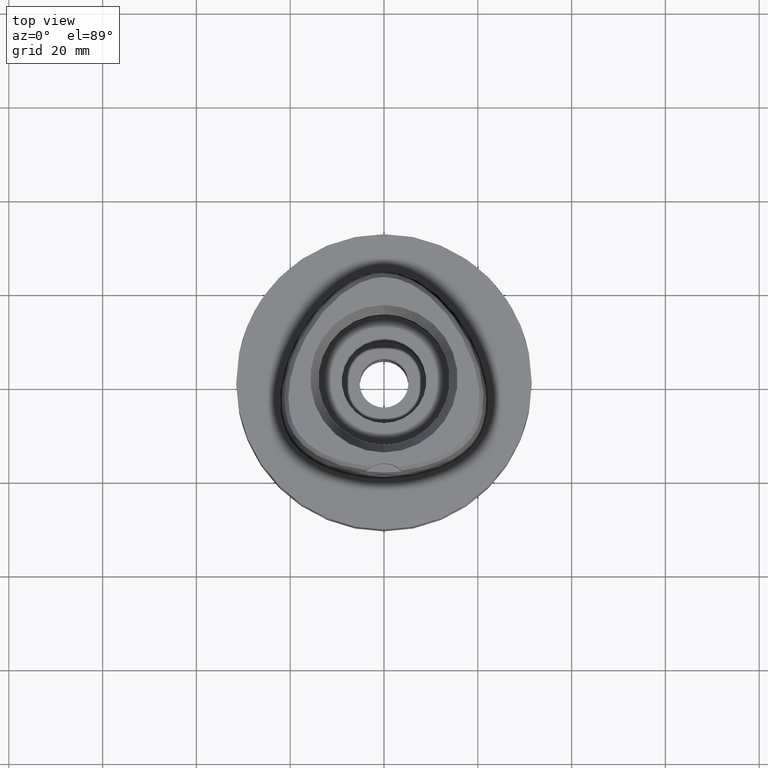
[diagram: clean part render]
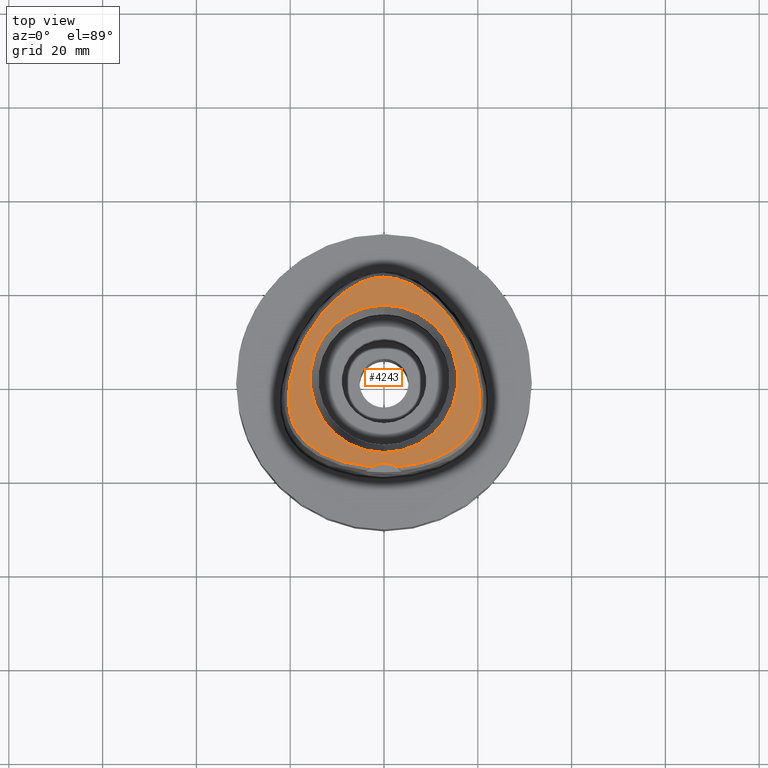
[diagram: same view with one face highlighted and labeled with its STEP entity id]
A machine part, top view. The second image highlights one B-rep face of the part: STEP entity #4243.
In plain terms, the highlighted planar face has unit normal (0, 0, 1).
Its self-contained STEP definition (entity closure, byte-faithful):
#8 = CARTESIAN_POINT ( 'NONE',  ( 10.17751632998190559, -17.24426134458915172, 37.99999999999217692 ) ) ;
#20 = VERTEX_POINT ( 'NONE', #3917 ) ;
#40 = CARTESIAN_POINT ( 'NONE',  ( -3.481017203589037656, 21.13509756881235546, 37.99999999999982947 ) ) ;
#53 = CARTESIAN_POINT ( 'NONE',  ( 15.00628712263565312, -14.82385870794811922, 37.99999999999611333 ) ) ;
#150 = AXIS2_PLACEMENT_3D ( 'NONE', #2559, #1288, #4353 ) ;
#198 = DIRECTION ( 'NONE',  ( 0.0000000000000000000, 0.0000000000000000000, 1.000000000000000000 ) ) ;
#238 = CARTESIAN_POINT ( 'NONE',  ( -19.98419490691548361, -7.809898894995556340, 37.99999999999954525 ) ) ;
#266 = CARTESIAN_POINT ( 'NONE',  ( -18.31748213707052386, -11.58791794387970953, 37.99999999999789679 ) ) ;
#288 = CARTESIAN_POINT ( 'NONE',  ( -19.78262210840454571, -8.543146992552236085, 38.00000000000492406 ) ) ;
#309 = CARTESIAN_POINT ( 'NONE',  ( -19.26324493738955468, 2.868570891456752481, 38.00000000000336087 ) ) ;
#332 = CARTESIAN_POINT ( 'NONE',  ( -12.44116897271013222, 14.89128547409494274, 38.00000000000293454 ) ) ;
#346 = CARTESIAN_POINT ( 'NONE',  ( 19.54993126781776880, -9.226212439886054995, 38.00000000000284928 ) ) ;
#373 = CARTESIAN_POINT ( 'NONE',  ( 19.94150023627803137, 0.2261566111946333446, 38.00000000000305533 ) ) ;
#385 = B_SPLINE_CURVE_WITH_KNOTS ( 'NONE', 3,
 ( #2146, #1045, #4827, #1067, #662, #2567, #3679, #683, #1386, #1844, #3706, #2916, #4108, #2194, #635, #1767, #2515, #1025, #266, #1361, #4905, #4853, #3405, #288, #238, #2238, #3382, #4454, #1792, #3749, #3310, #2540, #3335, #1818, #309, #4080, #1089, #1465, #3773, #3358, #4880, #2976, #2998, #332, #4508, #2592, #2895, #4532, #2618, #4157, #706, #4427, #991, #40, #4555, #2694, #4649, #1116, #3024, #4200 ),
 .UNSPECIFIED., .F., .F.,
 ( 4, 1, 1, 1, 1, 1, 1, 1, 1, 1, 1, 1, 1, 1, 1, 1, 1, 1, 1, 1, 1, 1, 1, 1, 1, 1, 1, 1, 1, 1, 1, 1, 1, 1, 1, 1, 1, 1, 1, 1, 1, 1, 1, 1, 1, 1, 1, 1, 1, 1, 1, 1, 1, 1, 1, 1, 1, 4 ),
 ( 0.0000000000000000000, 0.005420919554200098744, 0.02318126027639999531, 0.04094160099879995407, 0.05870194172099996166, 0.07646228244330000035, 0.09422262316550000794, 0.1119829638877999356, 0.1297433046099999432, 0.1475036453321999508, 0.1652639860544999895, 0.1830243267768000281, 0.2007846674991000668, 0.2185450082212999634, 0.2363053489436000021, 0.2540656896658000097, 0.2718260303881000484, 0.2895863711103000560, 0.3073467118325999836, 0.3251070525547999912, 0.3428673932771000299, 0.3606277339994000686, 0.3783880747216000762, 0.3961484154438998928, 0.4139087561661000114, 0.4316690968884000501, 0.4494294376106000577, 0.4671897783328999854, 0.4849501190552000240, 0.5027104597774000316, 0.5204708004996999593, 0.5382311412219000779, 0.5559914819442000056, 0.5737518226664000132, 0.5915121633886999408, 0.6092725041108999484, 0.6270328448331999871, 0.6447931855555000258, 0.6625535262777000334, 0.6803138669999999610, 0.6980742077221999686, 0.7158345484445000073, 0.7335948891667000149, 0.7513552298890000536, 0.7691155706112000612, 0.7868759113336000199, 0.8046362520558000275, 0.8223965927780999552, 0.8401569335002999628, 0.8579172742224999704, 0.8756776149448000091, 0.8934379556670000166, 0.9111982963893099363, 0.9289586371115700070, 0.9467189778338299666, 0.9644793185560800453, 0.9822396592783400049, 1.000000000000000000 ),
 .UNSPECIFIED. ) ;
#394 = CARTESIAN_POINT ( 'NONE',  ( 11.32341394163062809, -16.80569392800790141, 37.99999999999589306 ) ) ;
#417 = CARTESIAN_POINT ( 'NONE',  ( 12.44125753246842692, 14.89118158853494478, 37.99999999999783995 ) ) ;
#419 = EDGE_LOOP ( 'NONE', ( #2419, #3201 ) ) ;
#439 = CARTESIAN_POINT ( 'NONE',  ( 0.6513209347956022688, 21.67370899611317370, 37.99999999999768363 ) ) ;
#486 = VERTEX_POINT ( 'NONE', #726 ) ;
#635 = CARTESIAN_POINT ( 'NONE',  ( -16.36032397153822515, -13.76458520345111936, 38.00000000000185452 ) ) ;
#645 = CARTESIAN_POINT ( 'NONE',  ( 0.0000000000000000000, 15.71487483155999776, 38.00000000000000000 ) ) ;
#662 = CARTESIAN_POINT ( 'NONE',  ( -6.188376196366313309, -18.31830638230976405, 38.00000000000031974 ) ) ;
#683 = CARTESIAN_POINT ( 'NONE',  ( -10.17136073855085243, -17.24644253470297883, 38.00000000000436984 ) ) ;
#706 = CARTESIAN_POINT ( 'NONE',  ( -5.893543501600960965, 20.13235399351943755, 38.00000000000260769 ) ) ;
#717 = CARTESIAN_POINT ( 'NONE',  ( 9.524842839488611546, 17.70516372194568788, 38.00000000000068212 ) ) ;
#726 = CARTESIAN_POINT ( 'NONE',  ( 2.682287482605000051, -18.78036330228999873, 38.00000000000000000 ) ) ;
#743 = CARTESIAN_POINT ( 'NONE',  ( 19.98468477323133641, -7.807876343103603567, 37.99999999999399591 ) ) ;
#769 = CARTESIAN_POINT ( 'NONE',  ( 20.38292172607974706, -3.276278498261163463, 37.99999999999516120 ) ) ;
#795 = CARTESIAN_POINT ( 'NONE',  ( 18.79595068776392708, 4.257753965101878535, 37.99999999999681677 ) ) ;
#820 = CARTESIAN_POINT ( 'NONE',  ( 20.36412151361413692, -5.276385427454139965, 37.99999999999643308 ) ) ;
#921 = DIRECTION ( 'NONE',  ( 0.0000000000000000000, -1.000000000000000000, 0.0000000000000000000 ) ) ;
#991 = CARTESIAN_POINT ( 'NONE',  ( -4.254559144977576146, 20.86660163697397508, 37.99999999999848654 ) ) ;
#1025 = CARTESIAN_POINT ( 'NONE',  ( -17.91005512243684805, -12.13778127739548651, 37.99999999999809575 ) ) ;
#1045 = CARTESIAN_POINT ( 'NONE',  ( -2.841965291530292426, -18.76757795571573695, 37.99999999999754152 ) ) ;
#1052 = CARTESIAN_POINT ( 'NONE',  ( 0.0000000000000000000, 0.0000000000000000000, 38.00000000000000000 ) ) ;
#1067 = CARTESIAN_POINT ( 'NONE',  ( -4.706994425064735310, -18.56721852572744424, 38.00000000000441958 ) ) ;
#1089 = CARTESIAN_POINT ( 'NONE',  ( -18.24302769441974803, 5.671232572958252227, 38.00000000000181188 ) ) ;
#1096 = EDGE_LOOP ( 'NONE', ( #1505, #2415, #2271 ) ) ;
#1104 = CARTESIAN_POINT ( 'NONE',  ( 19.28677546797570486, -9.867757137506423248, 37.99999999999532463 ) ) ;
#1116 = CARTESIAN_POINT ( 'NONE',  ( -0.6498990081534651297, 21.67378274708412178, 37.99999999999906208 ) ) ;
#1129 = CARTESIAN_POINT ( 'NONE',  ( 19.64387775268659198, 1.522048414457828569, 37.99999999999570122 ) ) ;
#1150 = CARTESIAN_POINT ( 'NONE',  ( 2.018320379028573974, 21.50256508436651259, 37.99999999999770495 ) ) ;
#1174 = CARTESIAN_POINT ( 'NONE',  ( 3.482188079160372318, 21.13472718027603747, 37.99999999999329958 ) ) ;
#1195 = CARTESIAN_POINT ( 'NONE',  ( 4.715576077242463526, -18.56597918135471659, 37.99999999999371170 ) ) ;
#1288 = DIRECTION ( 'NONE',  ( 0.0000000000000000000, 0.0000000000000000000, 1.000000000000000000 ) ) ;
#1340 = FACE_OUTER_BOUND ( 'NONE', #1096, .T. ) ;
#1347 = CIRCLE ( 'NONE', #150, 15.71487483155999776 ) ;
#1361 = CARTESIAN_POINT ( 'NONE',  ( -18.67608643721816009, -11.03561202290891607, 37.99999999999732125 ) ) ;
#1366 = CARTESIAN_POINT ( 'NONE',  ( 0.0000000000000000000, 0.0000000000000000000, 38.00000000000000000 ) ) ;
#1386 = CARTESIAN_POINT ( 'NONE',  ( -11.31790883121293767, -16.80796958613732173, 37.99999999999862865 ) ) ;
#1393 = PLANE ( 'NONE',  #3176 ) ;
#1408 = CARTESIAN_POINT ( 'NONE',  ( 18.24247239569687196, 5.672548708072314483, 37.99999999999596412 ) ) ;
#1465 = CARTESIAN_POINT ( 'NONE',  ( -17.60426951086821745, 7.098774535281576092, 37.99999999999933209 ) ) ;
#1503 = CARTESIAN_POINT ( 'NONE',  ( 14.34383722811839590, 12.54786717290273401, 37.99999999999673150 ) ) ;
#1505 = ORIENTED_EDGE ( 'NONE', *, *, #3870, .F. ) ;
#1529 = CARTESIAN_POINT ( 'NONE',  ( 8.578848111817070077, 18.44609846599465897, 37.99999999999545253 ) ) ;
#1578 = CARTESIAN_POINT ( 'NONE',  ( 16.36283630828430802, -13.76236604535393049, 37.99999999999808153 ) ) ;
#1765 = VERTEX_POINT ( 'NONE', #3230 ) ;
#1767 = CARTESIAN_POINT ( 'NONE',  ( -16.93638123745085267, -13.22593246128543321, 37.99999999999938893 ) ) ;
#1774 = FACE_BOUND ( 'NONE', #419, .T. ) ;
#1792 = CARTESIAN_POINT ( 'NONE',  ( -20.40060226222328055, -4.311417605381407725, 38.00000000000665779 ) ) ;
#1818 = CARTESIAN_POINT ( 'NONE',  ( -19.64434054692757670, 1.520253387635341680, 37.99999999999442934 ) ) ;
#1828 = EDGE_CURVE ( 'NONE', #4298, #20, #1347, .T. ) ;
#1838 = AXIS2_PLACEMENT_3D ( 'NONE', #1366, #198, #921 ) ;
#1844 = CARTESIAN_POINT ( 'NONE',  ( -12.37132652997411775, -16.34104299088199497, 37.99999999999779732 ) ) ;
#1876 = CARTESIAN_POINT ( 'NONE',  ( 8.936919536467140546, -17.64796721715157446, 37.99999999999498357 ) ) ;
#1904 = CARTESIAN_POINT ( 'NONE',  ( 6.196495988003688282, -18.31673538865006634, 37.99999999999585043 ) ) ;
#1925 = CARTESIAN_POINT ( 'NONE',  ( 2.682287482605000051, -18.78036330228999873, 38.00000000000000000 ) ) ;
#1946 = CARTESIAN_POINT ( 'NONE',  ( 20.27923816685590097, -6.179850483268190864, 38.00000000000218137 ) ) ;
#1974 = CARTESIAN_POINT ( 'NONE',  ( 20.30478359881706396, -2.175347700950502450, 37.99999999999626255 ) ) ;
#2146 = CARTESIAN_POINT ( 'NONE',  ( -2.682279906006999948, -18.78035848609999903, 38.00000000000000000 ) ) ;
#2147 = EDGE_CURVE ( 'NONE', #20, #4298, #4721, .T. ) ;
#2194 = CARTESIAN_POINT ( 'NONE',  ( -15.71788912669162208, -14.29843101566231667, 37.99999999999629097 ) ) ;
#2238 = CARTESIAN_POINT ( 'NONE',  ( -20.15090095365025391, -7.024227649787309957, 38.00000000000500933 ) ) ;
#2250 = CARTESIAN_POINT ( 'NONE',  ( 16.88599964843074019, 8.518708218769932117, 37.99999999999635492 ) ) ;
#2271 = ORIENTED_EDGE ( 'NONE', *, *, #4480, .F. ) ;
#2275 = CARTESIAN_POINT ( 'NONE',  ( 13.40430406168976951, 13.76274261013416123, 38.00000000000384404 ) ) ;
#2305 = CARTESIAN_POINT ( 'NONE',  ( 18.31883910943184901, -11.58595831188243608, 37.99999999999543832 ) ) ;
#2330 = CARTESIAN_POINT ( 'NONE',  ( 19.26272899268355943, 2.870227893749634607, 37.99999999999469225 ) ) ;
#2352 = CARTESIAN_POINT ( 'NONE',  ( 12.37622418509859124, -16.33871033286321506, 37.99999999999780442 ) ) ;
#2373 = AXIS2_PLACEMENT_3D ( 'NONE', #3849, #2648, #3411 ) ;
#2415 = ORIENTED_EDGE ( 'NONE', *, *, #3290, .F. ) ;
#2419 = ORIENTED_EDGE ( 'NONE', *, *, #2147, .F. ) ;
#2486 = CARTESIAN_POINT ( 'NONE',  ( -2.682279906006999948, -18.78035848609999903, 38.00000000000000000 ) ) ;
#2498 = DIRECTION ( 'NONE',  ( 0.0000000000000000000, 0.0000000000000000000, 1.000000000000000000 ) ) ;
#2515 = CARTESIAN_POINT ( 'NONE',  ( -17.45119705494091988, -12.68365517585234770, 37.99999999999938893 ) ) ;
#2540 = CARTESIAN_POINT ( 'NONE',  ( -20.16012968311504139, -1.009698174524069403, 37.99999999999889155 ) ) ;
#2559 = CARTESIAN_POINT ( 'NONE',  ( 0.0000000000000000000, 0.0000000000000000000, 38.00000000000000000 ) ) ;
#2567 = CARTESIAN_POINT ( 'NONE',  ( -7.599370508970773486, -18.01010694911734333, 38.00000000000499512 ) ) ;
#2592 = CARTESIAN_POINT ( 'NONE',  ( -10.48962422759511526, 16.86631853279375548, 38.00000000000175504 ) ) ;
#2618 = CARTESIAN_POINT ( 'NONE',  ( -7.655222869371832495, 19.09452359226587248, 37.99999999999369749 ) ) ;
#2628 = CARTESIAN_POINT ( 'NONE',  ( 0.2185816947241297215, 21.68728795389934660, 38.00000000000162714 ) ) ;
#2648 = DIRECTION ( 'NONE',  ( 0.0000000000000000000, 0.0000000000000000000, 1.000000000000000000 ) ) ;
#2652 = CARTESIAN_POINT ( 'NONE',  ( 3.529311563348292324, -18.70747079910273669, 37.99999999999646150 ) ) ;
#2679 = CARTESIAN_POINT ( 'NONE',  ( 16.09765529146375940, 9.909410920133842282, 37.99999999999425171 ) ) ;
#2694 = CARTESIAN_POINT ( 'NONE',  ( -2.017025177696718963, 21.50280829367775937, 37.99999999999981526 ) ) ;
#2706 = CARTESIAN_POINT ( 'NONE',  ( 6.760281394351018491, 19.65404668909613406, 37.99999999999566569 ) ) ;
#2729 = CARTESIAN_POINT ( 'NONE',  ( 2.845098933833324129, -18.76733062685804043, 37.99999999999666755 ) ) ;
#2895 = CARTESIAN_POINT ( 'NONE',  ( -9.524337278001864249, 17.70558492631239744, 37.99999999999698019 ) ) ;
#2916 = CARTESIAN_POINT ( 'NONE',  ( -14.21001600787582397, -15.34519100086024324, 38.00000000000085265 ) ) ;
#2941 = CARTESIAN_POINT ( 'NONE',  ( 17.91165267839561537, -12.13575389397869131, 38.00000000000072475 ) ) ;
#2976 = CARTESIAN_POINT ( 'NONE',  ( -14.34402387965428893, 12.54761970512664071, 37.99999999999879208 ) ) ;
#2998 = CARTESIAN_POINT ( 'NONE',  ( -13.40435640712022014, 13.76268382997115935, 37.99999999999844391 ) ) ;
#3024 = CARTESIAN_POINT ( 'NONE',  ( -0.2181979014508410586, 21.68728795389161235, 37.99999999999995737 ) ) ;
#3036 = CARTESIAN_POINT ( 'NONE',  ( 20.15127154947341737, -7.022178451341329009, 37.99999999999695888 ) ) ;
#3065 = CARTESIAN_POINT ( 'NONE',  ( 5.059249257021019908, 20.53399274679399511, 37.99999999999965894 ) ) ;
#3110 = CARTESIAN_POINT ( 'NONE',  ( 13.33890749495696859, -15.84912955619976316, 37.99999999999000266 ) ) ;
#3176 = AXIS2_PLACEMENT_3D ( 'NONE', #1052, #2498, #4411 ) ;
#3201 = ORIENTED_EDGE ( 'NONE', *, *, #1828, .F. ) ;
#3230 = CARTESIAN_POINT ( 'NONE',  ( -3.470663397159000143E-11, 21.68728795390000030, 38.00000000000000000 ) ) ;
#3290 = EDGE_CURVE ( 'NONE', #3855, #1765, #385, .T. ) ;
#3310 = CARTESIAN_POINT ( 'NONE',  ( -20.30498420086258449, -2.177378896257978980, 38.00000000000663647 ) ) ;
#3335 = CARTESIAN_POINT ( 'NONE',  ( -19.94188961899547863, 0.2242544969876514582, 38.00000000000462563 ) ) ;
#3358 = CARTESIAN_POINT ( 'NONE',  ( -16.09805956313673647, 9.908742513517099226, 38.00000000000191847 ) ) ;
#3382 = CARTESIAN_POINT ( 'NONE',  ( -20.27898581531954747, -6.181921586190096463, 37.99999999999444356 ) ) ;
#3405 = CARTESIAN_POINT ( 'NONE',  ( -19.54919922641668961, -9.228169790567822162, 38.00000000000261480 ) ) ;
#3411 = DIRECTION ( 'NONE',  ( 0.0000000000000000000, 1.000000000000000000, 0.0000000000000000000 ) ) ;
#3416 = CARTESIAN_POINT ( 'NONE',  ( 5.894487344450628719, 20.13186406531982797, 37.99999999999419487 ) ) ;
#3437 = CARTESIAN_POINT ( 'NONE',  ( 20.15982952132115003, -1.007721426051255698, 38.00000000000405720 ) ) ;
#3486 = CARTESIAN_POINT ( 'NONE',  ( 16.93855157777527154, -13.22377441789119068, 37.99999999999114664 ) ) ;
#3679 = CARTESIAN_POINT ( 'NONE',  ( -8.930096025510231073, -17.65000298921445676, 38.00000000000230926 ) ) ;
#3706 = CARTESIAN_POINT ( 'NONE',  ( -13.33457781970412448, -15.85148397417726684, 38.00000000000339639 ) ) ;
#3749 = CARTESIAN_POINT ( 'NONE',  ( -20.38301517462964796, -3.278344853327907593, 38.00000000000639488 ) ) ;
#3773 = CARTESIAN_POINT ( 'NONE',  ( -16.88647904405163302, 8.517821442302427215, 37.99999999999785416 ) ) ;
#3782 = CARTESIAN_POINT ( 'NONE',  ( 20.40062138794701951, -4.309334958867625076, 37.99999999999690203 ) ) ;
#3804 = CARTESIAN_POINT ( 'NONE',  ( 18.99619228226693579, -10.46780014453591434, 37.99999999999639755 ) ) ;
#3831 = CARTESIAN_POINT ( 'NONE',  ( 18.67722910598470065, -11.03372143228093627, 37.99999999999979394 ) ) ;
#3849 = CARTESIAN_POINT ( 'NONE',  ( 0.0000000000000000000, -23.00000000000000000, 38.00000000000000000 ) ) ;
#3854 = CARTESIAN_POINT ( 'NONE',  ( 19.78323211892741540, -8.541156231035930801, 37.99999999999425171 ) ) ;
#3855 = VERTEX_POINT ( 'NONE', #2486 ) ;
#3870 = EDGE_CURVE ( 'NONE', #1765, #486, #4039, .T. ) ;
#3876 = CARTESIAN_POINT ( 'NONE',  ( 17.45306278053330473, -12.68156296993310050, 37.99999999999970157 ) ) ;
#3888 = CIRCLE ( 'NONE', #2373, 5.000000000000000888 ) ;
#3917 = CARTESIAN_POINT ( 'NONE',  ( 0.0000000000000000000, -15.71487483155999776, 38.00000000000000000 ) ) ;
#4039 = B_SPLINE_CURVE_WITH_KNOTS ( 'NONE', 3,
 ( #4821, #2628, #439, #4613, #1150, #4189, #1174, #4168, #3065, #3416, #2706, #4214, #1529, #717, #4240, #4944, #417, #2275, #1503, #4590, #2679, #2250, #4848, #1408, #795, #2330, #1129, #373, #3437, #1974, #769, #3782, #820, #1946, #3036, #743, #3854, #346, #1104, #3804, #3831, #2305, #2941, #3876, #3486, #1578, #4477, #53, #4570, #3110, #2352, #394, #8, #1876, #4638, #1904, #1195, #2652, #2729, #1925 ),
 .UNSPECIFIED., .F., .F.,
 ( 4, 1, 1, 1, 1, 1, 1, 1, 1, 1, 1, 1, 1, 1, 1, 1, 1, 1, 1, 1, 1, 1, 1, 1, 1, 1, 1, 1, 1, 1, 1, 1, 1, 1, 1, 1, 1, 1, 1, 1, 1, 1, 1, 1, 1, 1, 1, 1, 1, 1, 1, 1, 1, 1, 1, 1, 1, 4 ),
 ( 0.0000000000000000000, 0.01775854187129999318, 0.03551708374169992855, 0.05327562561200005486, 0.07103416748239999023, 0.08879270935270000553, 0.1065512512231000519, 0.1243097930933999562, 0.1420683349638000026, 0.1598268768341000179, 0.1775854187044000332, 0.1953439605747999686, 0.2131025024450999839, 0.2308610443155000302, 0.2486195861857999345, 0.2663781280563000120, 0.2841366699266000273, 0.3018952117970000737, 0.3196537536672999780, 0.3374122955377000244, 0.3551708374080000397, 0.3729293792782999439, 0.3906879211486999903, 0.4084464630190000056, 0.4262050048894000520, 0.4439635467596999563, 0.4617220886301000027, 0.4794806305004000180, 0.4972391723707999533, 0.5149977142410999686, 0.5327562561113999839, 0.5505147979818000303, 0.5682733398521000456, 0.5860318817224999810, 0.6037904235927999963, 0.6215489654632000427, 0.6393075073334999470, 0.6570660492038999934, 0.6748245910742000087, 0.6925831329445000240, 0.7103416748149000703, 0.7281002166851999746, 0.7458587585556000210, 0.7636173004259000363, 0.7813758422962999717, 0.7991343841665999870, 0.8168929260370000334, 0.8346514679073000487, 0.8524100097776999840, 0.8701685516479999993, 0.8879270935183000146, 0.9056856353886799660, 0.9234441772589799813, 0.9412027191293600437, 0.9589612609997000270, 0.9767198028700500023, 0.9944783447403919840, 1.000000000000000000 ),
 .UNSPECIFIED. ) ;
#4080 = CARTESIAN_POINT ( 'NONE',  ( -18.79649882724575249, 4.256255933891165633, 37.99999999999490541 ) ) ;
#4108 = CARTESIAN_POINT ( 'NONE',  ( -15.00295592773750464, -14.82617991125463242, 37.99999999999979394 ) ) ;
#4157 = CARTESIAN_POINT ( 'NONE',  ( -6.759433772716922917, 19.65454812513062777, 37.99999999999288036 ) ) ;
#4168 = CARTESIAN_POINT ( 'NONE',  ( 4.255661039972898685, 20.86618068830114581, 37.99999999999823785 ) ) ;
#4189 = CARTESIAN_POINT ( 'NONE',  ( 2.736932690726939565, 21.34527940056678474, 38.00000000000099476 ) ) ;
#4200 = CARTESIAN_POINT ( 'NONE',  ( -3.470663397159000143E-11, 21.68728795390000030, 38.00000000000000000 ) ) ;
#4214 = CARTESIAN_POINT ( 'NONE',  ( 7.655962789343791819, 19.09402979099318998, 38.00000000000099476 ) ) ;
#4240 = CARTESIAN_POINT ( 'NONE',  ( 10.48999540691501053, 16.86597469869581545, 38.00000000000240163 ) ) ;
#4243 = ADVANCED_FACE ( 'NONE', ( #1340, #1774 ), #1393, .T. ) ;
#4298 = VERTEX_POINT ( 'NONE', #645 ) ;
#4353 = DIRECTION ( 'NONE',  ( 0.0000000000000000000, 1.000000000000000000, 0.0000000000000000000 ) ) ;
#4411 = DIRECTION ( 'NONE',  ( 1.000000000000000000, 0.0000000000000000000, 0.0000000000000000000 ) ) ;
#4427 = CARTESIAN_POINT ( 'NONE',  ( -5.058220461389424827, 20.53445508814182929, 37.99999999999867839 ) ) ;
#4454 = CARTESIAN_POINT ( 'NONE',  ( -20.36398648679476509, -5.278470727085430525, 37.99999999999680966 ) ) ;
#4477 = CARTESIAN_POINT ( 'NONE',  ( 15.72078707640662110, -14.29615620309572677, 38.00000000000086686 ) ) ;
#4480 = EDGE_CURVE ( 'NONE', #486, #3855, #3888, .T. ) ;
#4508 = CARTESIAN_POINT ( 'NONE',  ( -11.46564124494124215, 15.92741340513246051, 37.99999999999575806 ) ) ;
#4532 = CARTESIAN_POINT ( 'NONE',  ( -8.578220530113476627, 18.44656747108949801, 38.00000000000705569 ) ) ;
#4555 = CARTESIAN_POINT ( 'NONE',  ( -2.735698246182888482, 21.34559102902212402, 37.99999999999933920 ) ) ;
#4570 = CARTESIAN_POINT ( 'NONE',  ( 14.21382211799261697, -15.34284287400389069, 37.99999999999300115 ) ) ;
#4590 = CARTESIAN_POINT ( 'NONE',  ( 15.24661770199143973, 11.25762885478256159, 37.99999999999843681 ) ) ;
#4613 = CARTESIAN_POINT ( 'NONE',  ( 1.325020189552947869, 21.61081414408695522, 38.00000000000071054 ) ) ;
#4638 = CARTESIAN_POINT ( 'NONE',  ( 7.606839420238051375, -18.00827588386773570, 37.99999999999390354 ) ) ;
#4649 = CARTESIAN_POINT ( 'NONE',  ( -1.323674540693794199, 21.61098849315778025, 38.00000000000220979 ) ) ;
#4721 = CIRCLE ( 'NONE', #1838, 15.71487483155999776 ) ;
#4821 = CARTESIAN_POINT ( 'NONE',  ( -3.470663397159000143E-11, 21.68728795390000030, 38.00000000000000000 ) ) ;
#4827 = CARTESIAN_POINT ( 'NONE',  ( -3.522896839654371615, -18.70811514173249179, 37.99999999999908340 ) ) ;
#4848 = CARTESIAN_POINT ( 'NONE',  ( 17.60373714027888070, 7.099883643192822724, 37.99999999999275957 ) ) ;
#4853 = CARTESIAN_POINT ( 'NONE',  ( -19.28591707036814995, -9.869682450886340774, 37.99999999999653255 ) ) ;
#4880 = CARTESIAN_POINT ( 'NONE',  ( -15.24692477332483165, 11.25717358965929193, 38.00000000000490274 ) ) ;
#4905 = CARTESIAN_POINT ( 'NONE',  ( -18.99520880204463680, -10.46968343926269718, 38.00000000000328271 ) ) ;
#4944 = CARTESIAN_POINT ( 'NONE',  ( 11.46587147800306639, 15.92717600802886047, 37.99999999999614175 ) ) ;